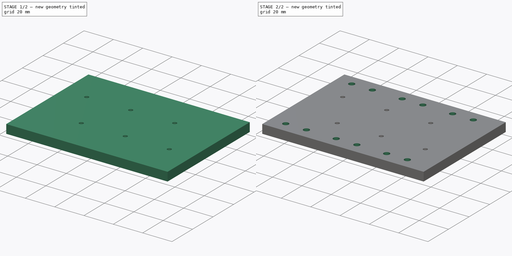
[diagram: build sequence overview — one tinted view per stage of 2, left to right]
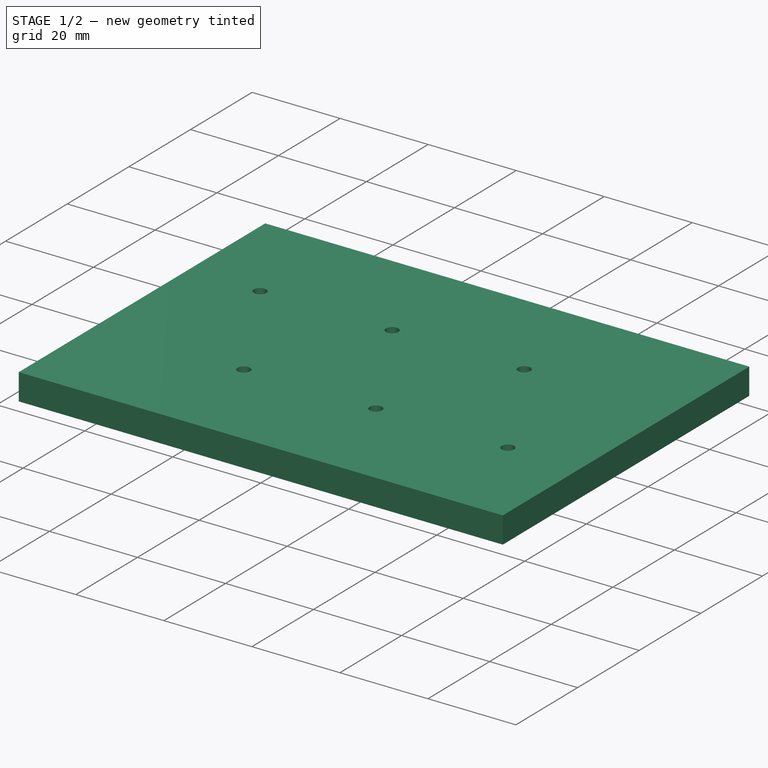
[diagram: stage 1 of 2 — iso view after this stage's code; geometry added in this stage tinted green]
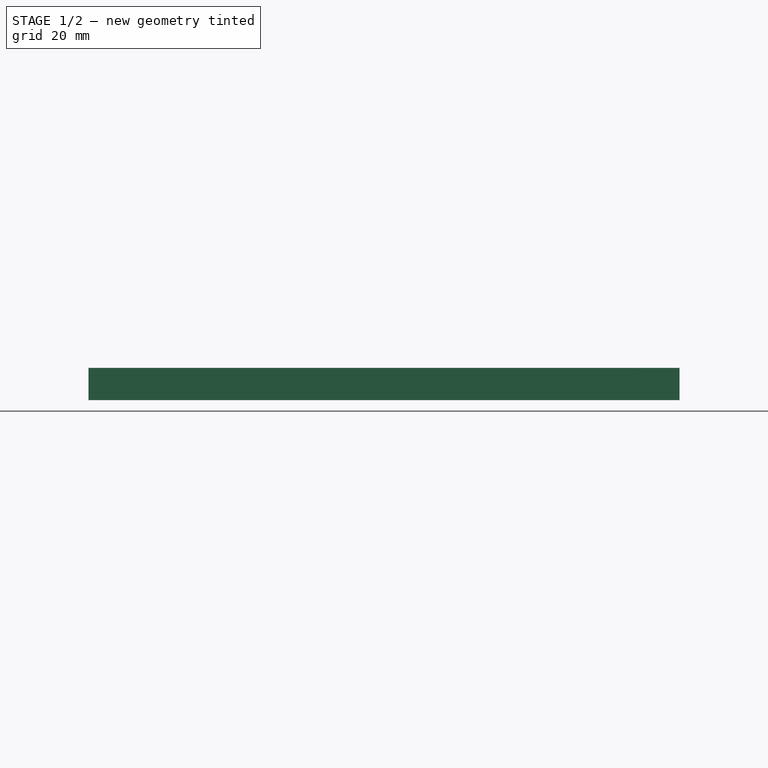
[diagram: stage 1 of 2 — front view after this stage's code; geometry added in this stage tinted green]
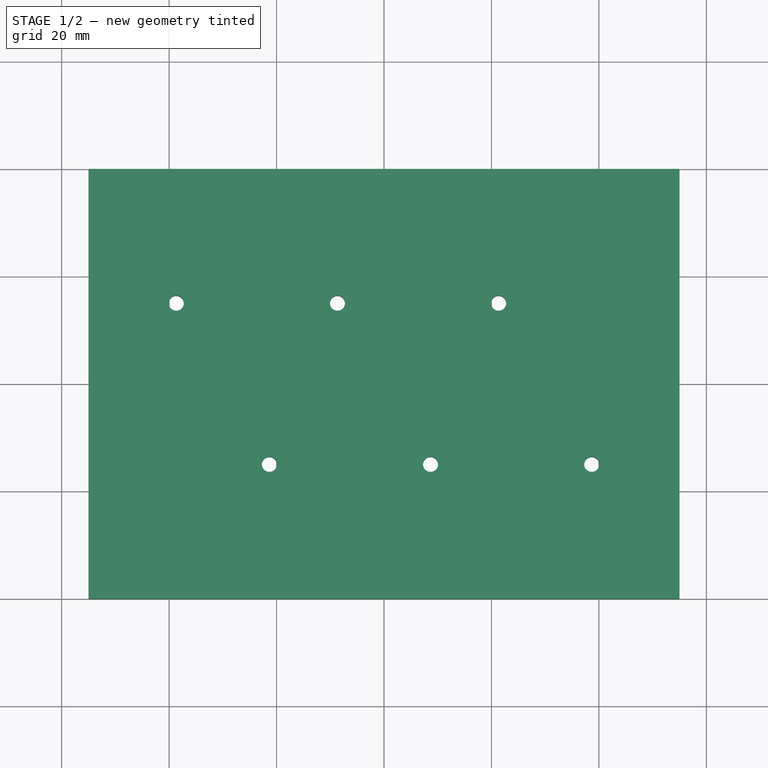
[diagram: stage 1 of 2 — top view after this stage's code; geometry added in this stage tinted green]
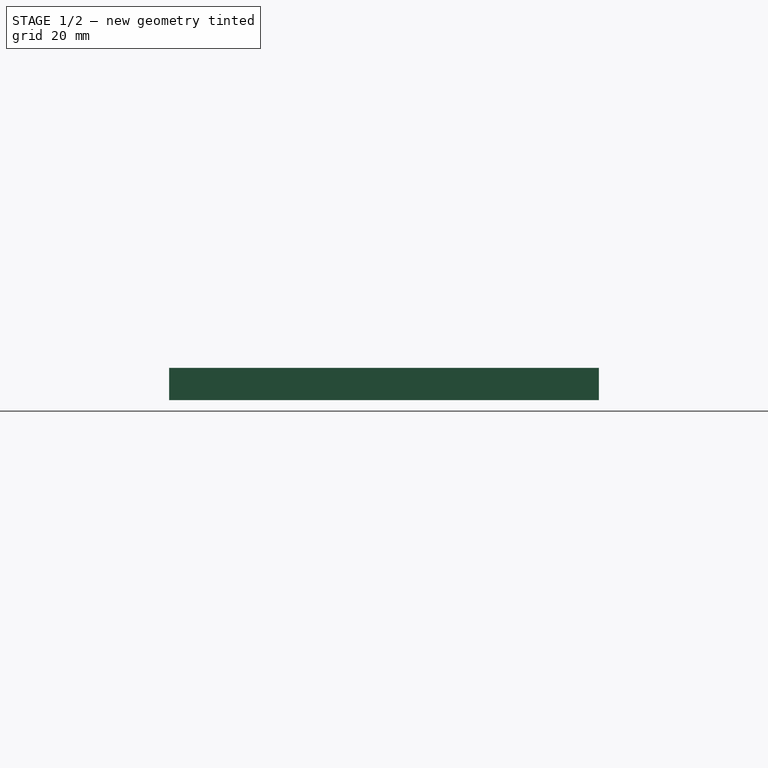
[diagram: stage 1 of 2 — right view after this stage's code; geometry added in this stage tinted green]
FCSTD DOCUMENT
Label: HackerBoat-Servo-Mount
objects: Sketcher::SketchObject×3, PartDesign::Pocket×2, PartDesign::Pad×1, PartDesign::Mirrored×1
note: 10 computed .brp shape members not serialized (recipe doc carries the construction recipe); baked Part::Feature solids carry a one-line shape summary decoded from their .brp

FEATURE [Sketcher::SketchObject] Sketch
  sketch-geometry (4):
    g0: LineSegment StartX=-55 StartY=40 StartZ=0 EndX=55 EndY=40 EndZ=0
    g1: LineSegment StartX=55 StartY=40 StartZ=0 EndX=55 EndY=-40 EndZ=0
    g2: LineSegment StartX=55 StartY=-40 StartZ=0 EndX=-55 EndY=-40 EndZ=0
    g3: LineSegment StartX=-55 StartY=-40 StartZ=0 EndX=-55 EndY=40 EndZ=0
  constraints (12):
    c: Coincident(g0,g1)
    c: Coincident(g1,g2)
    c: Coincident(g2,g3)
    c: Coincident(g3,g0)
    c: Horizontal(g0)
    c: Horizontal(g2)
    c: Vertical(g1)
    c: Vertical(g3)
    c: Symmetric(g0,g2,g-1)
    c: Symmetric(g0,g0,g-2)
    c: DistanceY(g3) = 80
    c: DistanceX(g0) = 110
FEATURE [PartDesign::Pad] Pad
  Length = 6
  Length2 = 100
  Sketch = -> Sketch
  Type = 0
FEATURE [Sketcher::SketchObject] Sketch001
  Placement = pos=(0,0,6) rot=(0,0,1;0rad)
  Support = -> Pad [Face6]
  sketch-geometry (12):
    g0: Circle CenterX=-38.6603 CenterY=15 CenterZ=0 NormalX=0 NormalY=0 NormalZ=1 Radius=1.4
    g1: Circle CenterX=-21.3397 CenterY=-15 CenterZ=0 NormalX=0 NormalY=0 NormalZ=1 Radius=1.4
    g2: Circle CenterX=-8.66025 CenterY=15 CenterZ=0 NormalX=0 NormalY=0 NormalZ=1 Radius=1.4
    g3: Circle CenterX=8.66025 CenterY=-15 CenterZ=0 NormalX=0 NormalY=0 NormalZ=1 Radius=1.4
    g4: Circle CenterX=21.3397 CenterY=15 CenterZ=0 NormalX=0 NormalY=0 NormalZ=1 Radius=1.4
    g5: Circle CenterX=38.6603 CenterY=-15 CenterZ=0 NormalX=0 NormalY=0 NormalZ=1 Radius=1.4
    g6: LineSegment [constr] StartX=-38.6603 StartY=15 StartZ=0 EndX=-8.66025 EndY=15 EndZ=0
    g7: LineSegment [constr] StartX=-8.66025 StartY=15 StartZ=0 EndX=21.3397 EndY=15 EndZ=0
    g8: LineSegment [constr] StartX=-21.3397 StartY=-15 StartZ=0 EndX=8.66025 EndY=-15 EndZ=0
    g9: LineSegment [constr] StartX=8.66025 StartY=-15 StartZ=0 EndX=38.6603 EndY=-15 EndZ=0
    g10: LineSegment [constr] StartX=0 StartY=0 StartZ=0 EndX=-8.66025 EndY=15 EndZ=0
    g11: LineSegment [constr] StartX=0 StartY=0 StartZ=0 EndX=8.66025 EndY=-15 EndZ=0
  constraints (30):
    c: Equal(g0,g1)
    c: Equal(g1,g2)
    c: Equal(g2,g3)
    c: Equal(g3,g4)
    c: Equal(g4,g5)
    c: Radius(g0) = 1.4
    c: Coincident(g6,g2)
    c: Horizontal(g6)
    c: Coincident(g7,g4)
    c: Horizontal(g7)
    c: Coincident(g2,g7)
    c: Coincident(g8,g1)
    c: Coincident(g8,g3)
    c: Horizontal(g8)
    c: Coincident(g9,g3)
    c: Coincident(g5,g9)
    c: Horizontal(g9)
    c: Equal(g6,g8)
    c: Equal(g8,g9)
    c: Equal(g9,g7)
    c: Coincident(g0,g6)
    c: DistanceX(g0,g4) = 60
    c: Coincident(g10,g-1)
    c: Coincident(g10,g2)
    c: Coincident(g11,g-1)
    c: Coincident(g11,g3)
    c: Equal(g10,g11)
    c: Parallel(g10,g11)
    c: Angle(g-1,g10) = 2.0944
    c: DistanceY(g4,g5) = -30
FEATURE [PartDesign::Pocket] Pocket
  Length = 8
  Sketch = -> Sketch001
  Type = 0
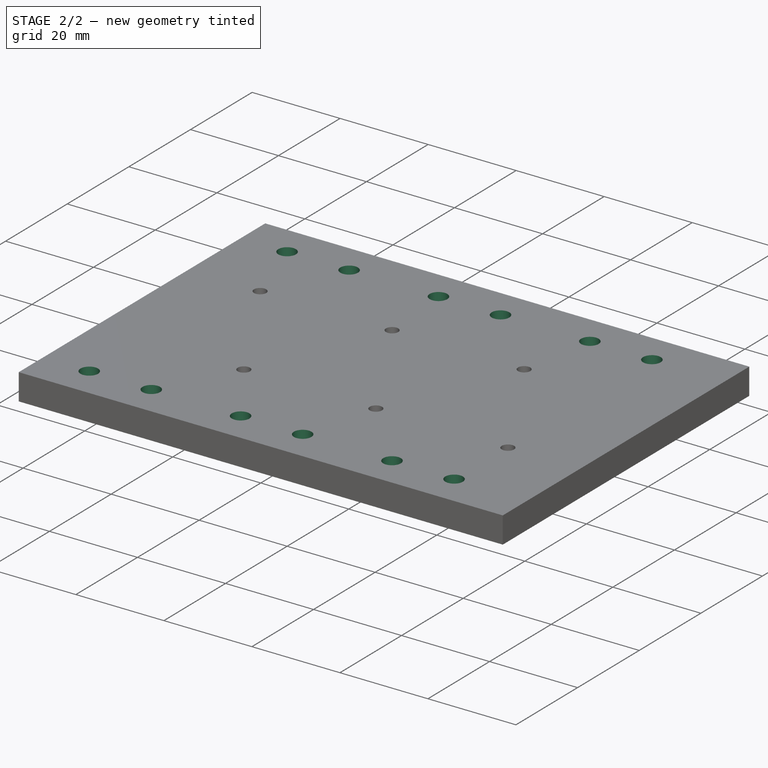
[diagram: stage 2 of 2 — iso view after this stage's code; geometry added in this stage tinted green]
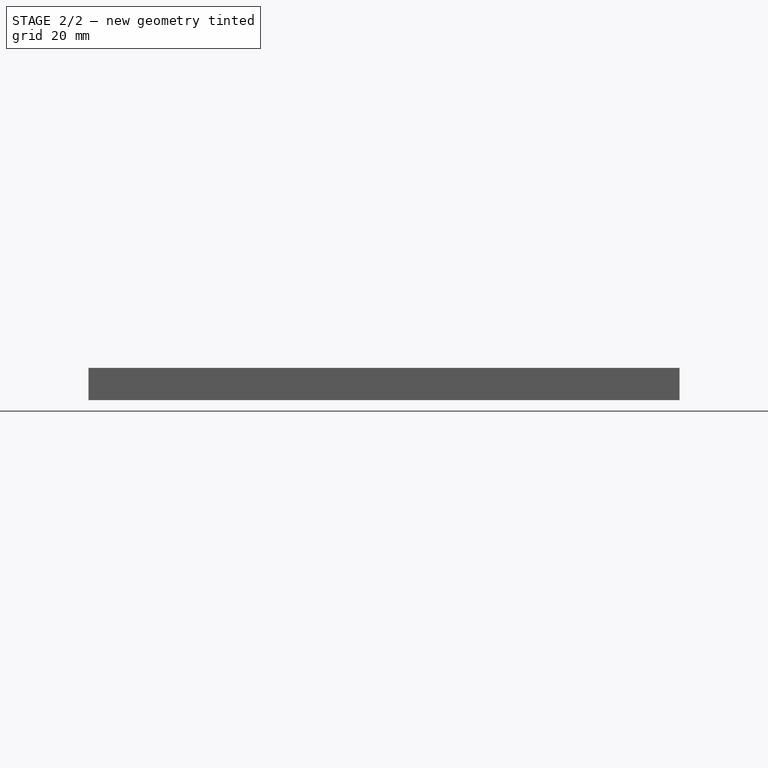
[diagram: stage 2 of 2 — front view after this stage's code; geometry added in this stage tinted green]
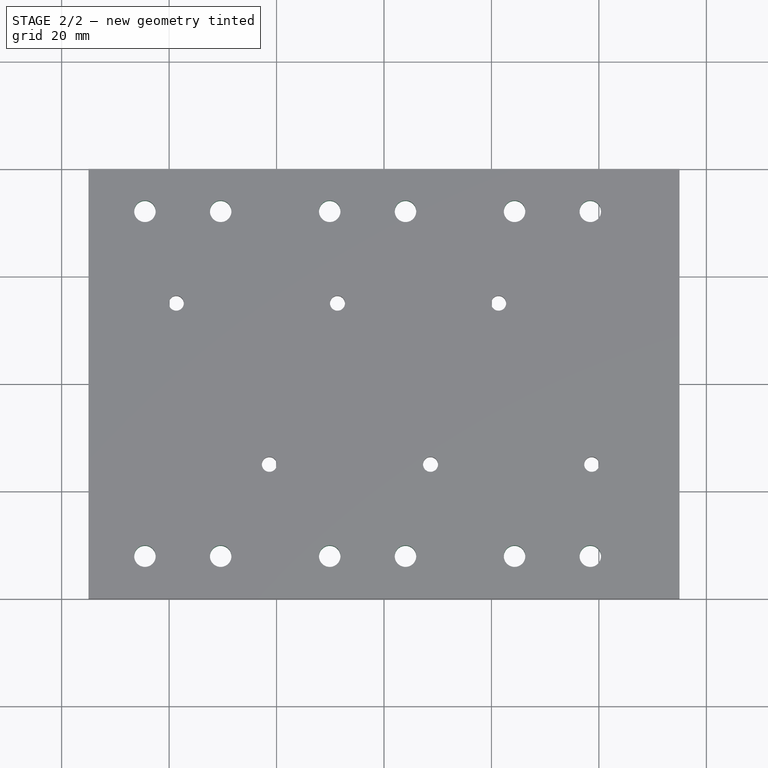
[diagram: stage 2 of 2 — top view after this stage's code; geometry added in this stage tinted green]
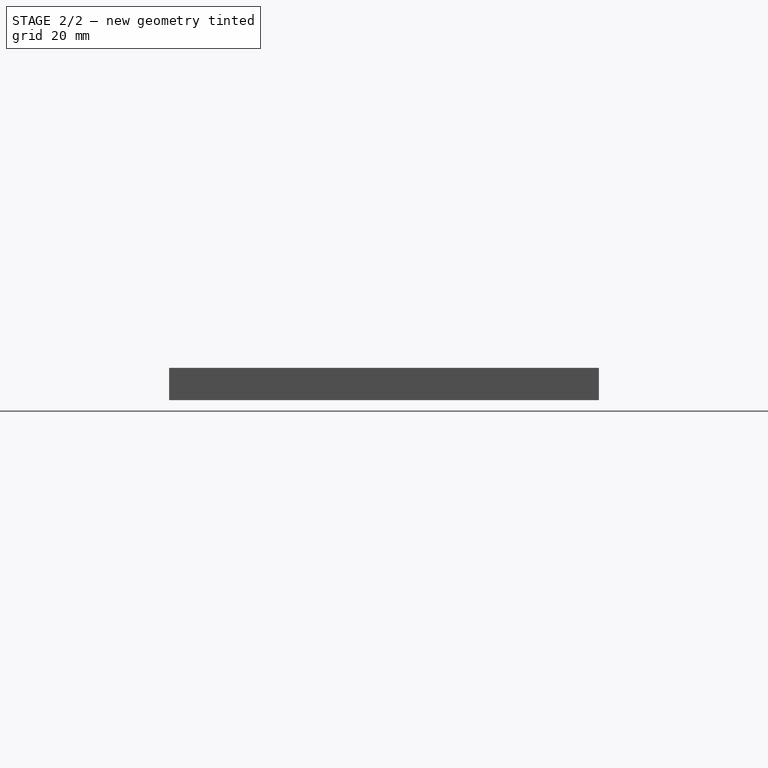
[diagram: stage 2 of 2 — right view after this stage's code; geometry added in this stage tinted green]
FEATURE [Sketcher::SketchObject] Sketch002
  Placement = pos=(0,0,6) rot=(0,0,1;0rad)
  Support = -> Pocket [Face5]
  sketch-geometry (7):
    g0: Circle CenterX=-44.5 CenterY=32.1 CenterZ=0 NormalX=0 NormalY=0 NormalZ=1 Radius=2
    g1: LineSegment [constr] StartX=-44.5 StartY=32.1 StartZ=0 EndX=38.4 EndY=32.1 EndZ=0
    g2: Circle CenterX=38.4 CenterY=32.1 CenterZ=0 NormalX=0 NormalY=0 NormalZ=1 Radius=2
    g3: Circle CenterX=-30.4 CenterY=32.1 CenterZ=0 NormalX=0 NormalY=0 NormalZ=1 Radius=2
    g4: Circle CenterX=-10.1 CenterY=32.1 CenterZ=0 NormalX=0 NormalY=0 NormalZ=1 Radius=2
    g5: Circle CenterX=24.3 CenterY=32.1 CenterZ=0 NormalX=0 NormalY=0 NormalZ=1 Radius=2
    g6: Circle CenterX=4 CenterY=32.1 CenterZ=0 NormalX=0 NormalY=0 NormalZ=1 Radius=2
  constraints (20):
    c: Coincident(g1,g0)
    c: Coincident(g2,g1)
    c: PointOnObject(g4,g1)
    c: PointOnObject(g3,g1)
    c: PointOnObject(g5,g1)
    c: PointOnObject(g6,g1)
    c: Equal(g2,g6)
    c: Equal(g6,g5)
    c: Equal(g5,g4)
    c: Equal(g4,g3)
    c: Equal(g3,g0)
    c: Radius(g0) = 2
    c: DistanceX(g0,g3) = 14.1
    c: DistanceX(g3,g4) = 20.3
    c: DistanceX(g4,g6) = 14.1
    c: DistanceX(g6,g5) = 20.3
    c: DistanceX(g5,g1) = 14.1
    c: Horizontal(g1)
    c: DistanceY(g-1,g1) = 32.1
    c: DistanceX(g-1,g0) = -44.5
FEATURE [PartDesign::Pocket] Pocket001
  Length = 6
  Sketch = -> Sketch002
  Type = 0
FEATURE [PartDesign::Mirrored] Mirrored
  MirrorPlane = -> Sketch002 [H_Axis]
  Originals = -> [Pocket001]
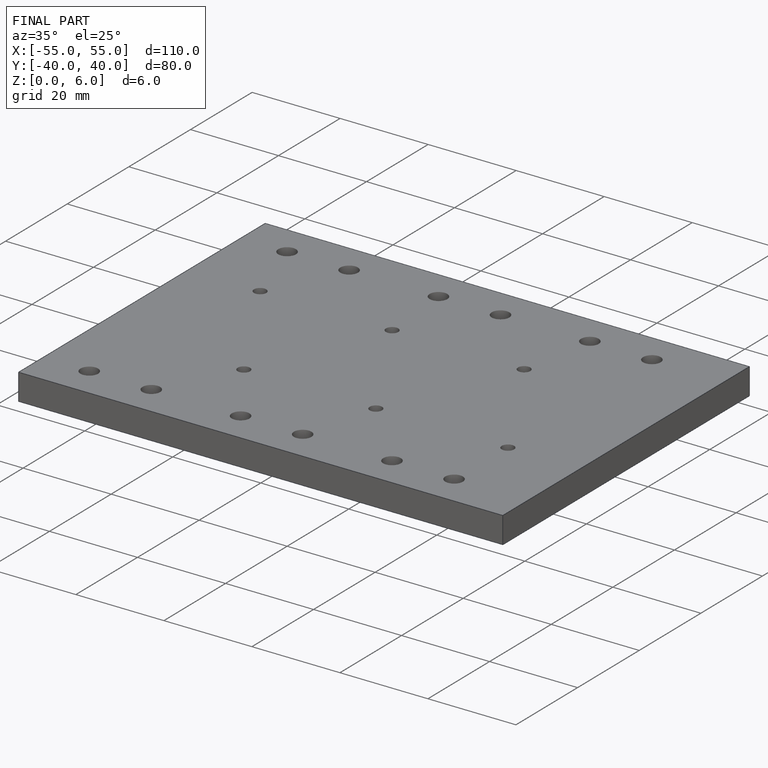
[diagram: finished part — iso view with bounding-box wireframe]
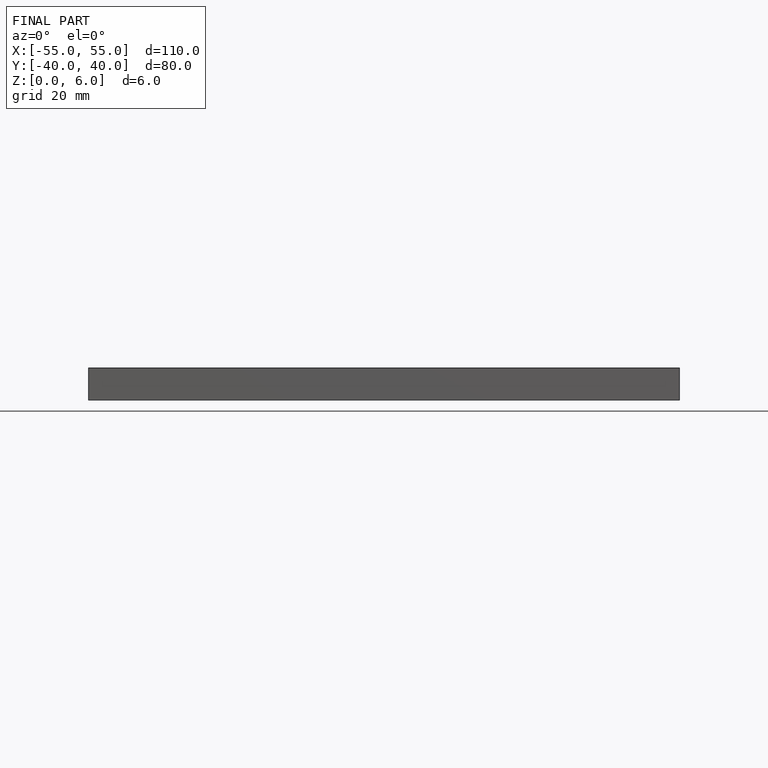
[diagram: finished part — front view with bounding-box wireframe]
